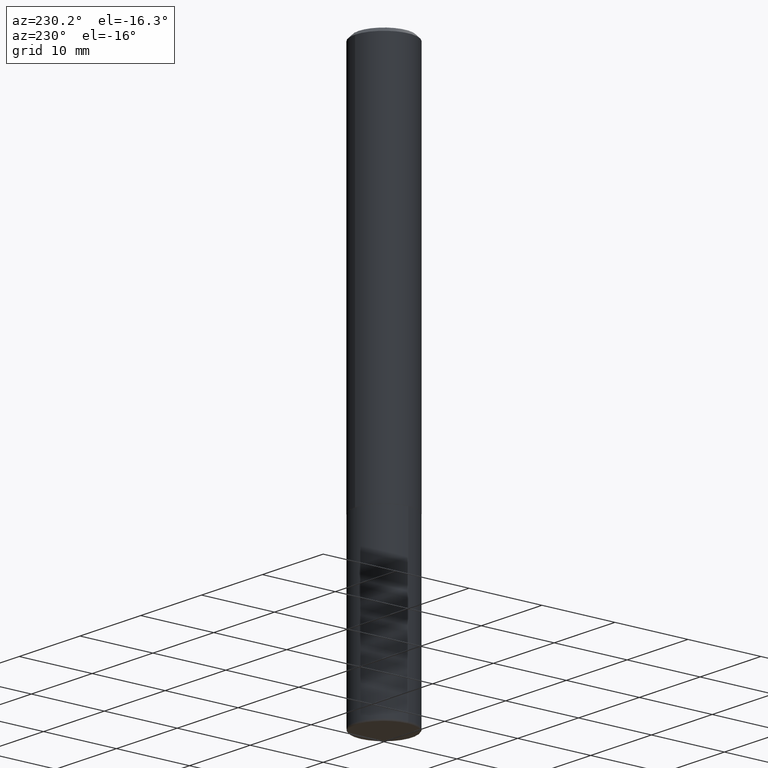
[diagram: clean part render]
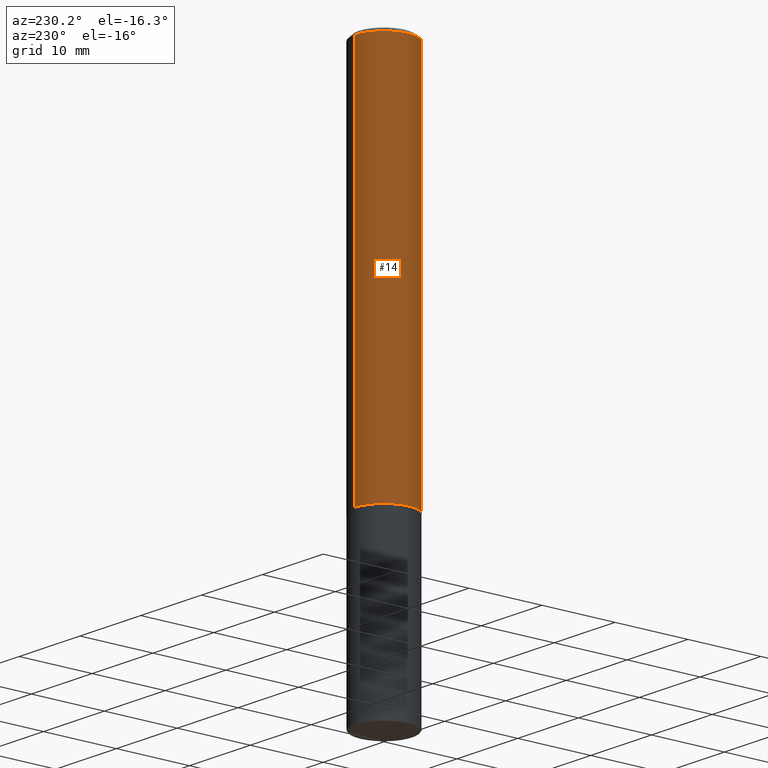
[diagram: same view with one face highlighted and labeled with its STEP entity id]
A machine part, auxiliary view. The second image highlights one B-rep face of the part: STEP entity #14.
In plain terms, the highlighted cylindrical surface (partial cylindrical patch) has radius 3.9688 mm, axis along (-0, 0, 1).
Its self-contained STEP definition (entity closure, byte-faithful):
#5 = FACE_OUTER_BOUND ( 'NONE', #231, .T. ) ;
#6 = AXIS2_PLACEMENT_3D ( 'NONE', #92, #224, #94 ) ;
#14 = ADVANCED_FACE ( 'NONE', ( #5 ), #388, .T. ) ;
#18 = DIRECTION ( 'NONE',  ( -2.445176063107630933E-29, 3.491900563592034843E-15, 1.000000000000000000 ) ) ;
#24 = DIRECTION ( 'NONE',  ( -2.445176063107630933E-29, 3.491900563592034843E-15, 1.000000000000000000 ) ) ;
#63 = LINE ( 'NONE', #193, #64 ) ;
#64 = VECTOR ( 'NONE', #291, 39.37007874015748143 ) ;
#67 = EDGE_CURVE ( 'NONE', #301, #108, #63, .T. ) ;
#74 = EDGE_CURVE ( 'NONE', #142, #108, #255, .T. ) ;
#80 = AXIS2_PLACEMENT_3D ( 'NONE', #148, #18, #415 ) ;
#86 = LINE ( 'NONE', #277, #385 ) ;
#92 = CARTESIAN_POINT ( 'NONE',  ( 0.000000000000000000, 0.000000000000000000, 0.000000000000000000 ) ) ;
#94 = DIRECTION ( 'NONE',  ( -6.982962677686265922E-15, -1.000000000000000000, 3.491900563592035238E-15 ) ) ;
#97 = CIRCLE ( 'NONE', #247, 0.1562500000000002776 ) ;
#108 = VERTEX_POINT ( 'NONE', #285 ) ;
#130 = ORIENTED_EDGE ( 'NONE', *, *, #67, .T. ) ;
#142 = VERTEX_POINT ( 'NONE', #290 ) ;
#148 = CARTESIAN_POINT ( 'NONE',  ( 4.890352126215269679E-31, -6.983801127184080238E-17, -0.02000000000000003511 ) ) ;
#168 = EDGE_CURVE ( 'NONE', #361, #142, #86, .T. ) ;
#173 = ORIENTED_EDGE ( 'NONE', *, *, #168, .F. ) ;
#193 = CARTESIAN_POINT ( 'NONE',  ( -1.091087918388479962E-15, -0.1562500000000001388, 5.456094630612559989E-16 ) ) ;
#215 = DIRECTION ( 'NONE',  ( -6.982962677686265922E-15, -1.000000000000000000, 3.496765431890250609E-15 ) ) ;
#224 = DIRECTION ( 'NONE',  ( -2.445176063107630933E-29, 3.491900563592034843E-15, 1.000000000000000000 ) ) ;
#231 = EDGE_LOOP ( 'NONE', ( #173, #363, #130, #292 ) ) ;
#247 = AXIS2_PLACEMENT_3D ( 'NONE', #308, #24, #215 ) ;
#255 = CIRCLE ( 'NONE', #80, 0.1562500000000000000 ) ;
#277 = CARTESIAN_POINT ( 'NONE',  ( 1.110223024625157329E-15, 0.1562500000000001388, -5.456094630612559989E-16 ) ) ;
#285 = CARTESIAN_POINT ( 'NONE',  ( -1.071952812151801215E-15, -0.1562500000000000833, -0.01999999999999948694 ) ) ;
#290 = CARTESIAN_POINT ( 'NONE',  ( 1.091087918388479568E-15, 0.1562499999999999445, -0.02000000000000057981 ) ) ;
#291 = DIRECTION ( 'NONE',  ( -2.445176063107631214E-29, 3.491900563592034843E-15, 1.000000000000000000 ) ) ;
#292 = ORIENTED_EDGE ( 'NONE', *, *, #74, .F. ) ;
#301 = VERTEX_POINT ( 'NONE', #373 ) ;
#304 = EDGE_CURVE ( 'NONE', #361, #301, #97, .T. ) ;
#307 = CARTESIAN_POINT ( 'NONE',  ( 1.110223024625183362E-15, 0.1562499999999930611, -2.061500000000000554 ) ) ;
#308 = CARTESIAN_POINT ( 'NONE',  ( 5.040730454096381281E-29, -7.198553011844980434E-15, -2.061500000000000110 ) ) ;
#361 = VERTEX_POINT ( 'NONE', #307 ) ;
#363 = ORIENTED_EDGE ( 'NONE', *, *, #304, .T. ) ;
#373 = CARTESIAN_POINT ( 'NONE',  ( -1.091087918388430659E-15, -0.1562500000000074940, -2.061499999999999666 ) ) ;
#385 = VECTOR ( 'NONE', #408, 39.37007874015748143 ) ;
#388 = CYLINDRICAL_SURFACE ( 'NONE', #6, 0.1562500000000001388 ) ;
#408 = DIRECTION ( 'NONE',  ( -2.445176063107631214E-29, 3.491900563592034843E-15, 1.000000000000000000 ) ) ;
#415 = DIRECTION ( 'NONE',  ( -6.982962677686265133E-15, -1.000000000000000000, 3.496765431890256920E-15 ) ) ;